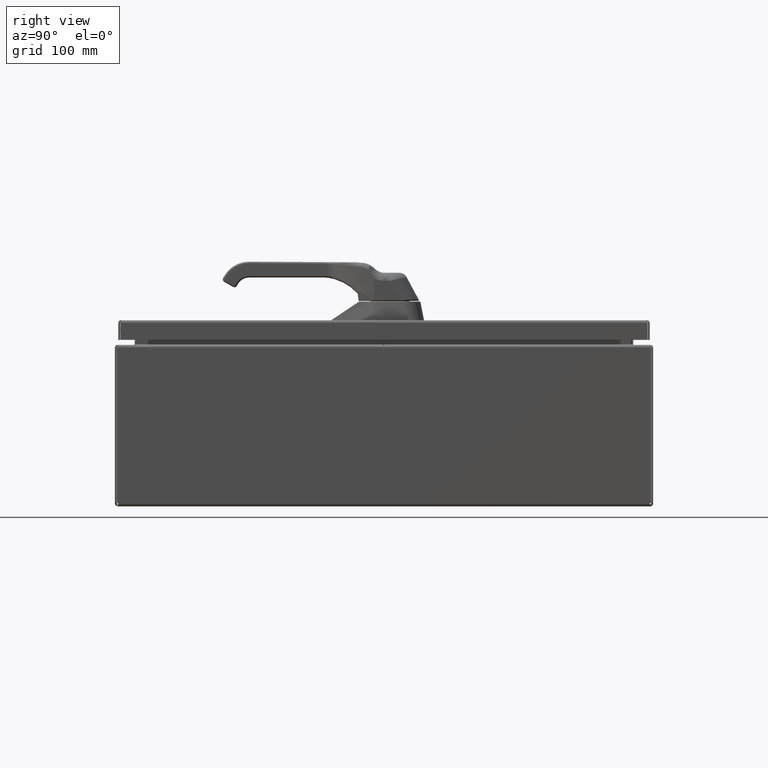
[diagram: clean part render]
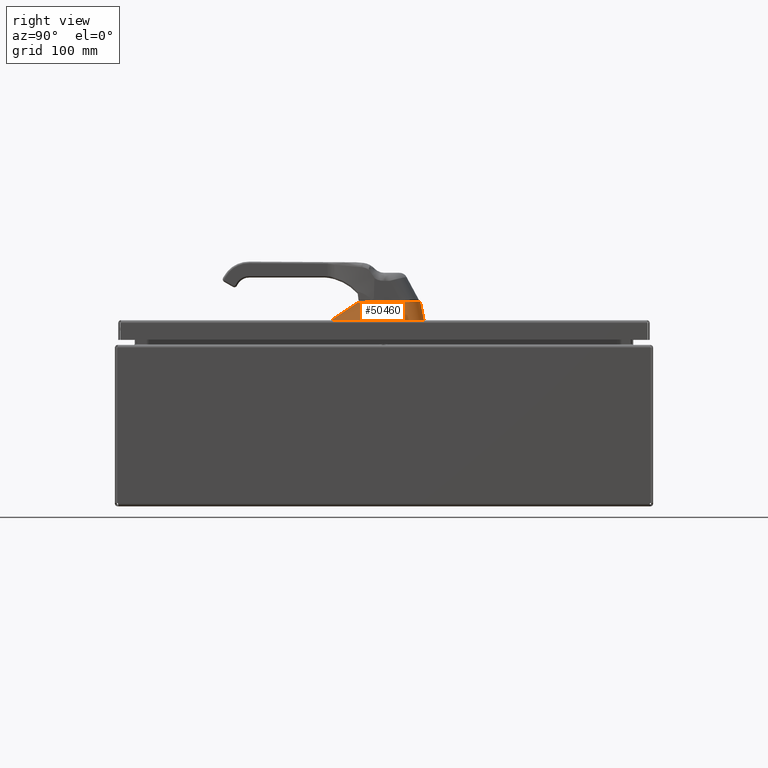
[diagram: same view with one face highlighted and labeled with its STEP entity id]
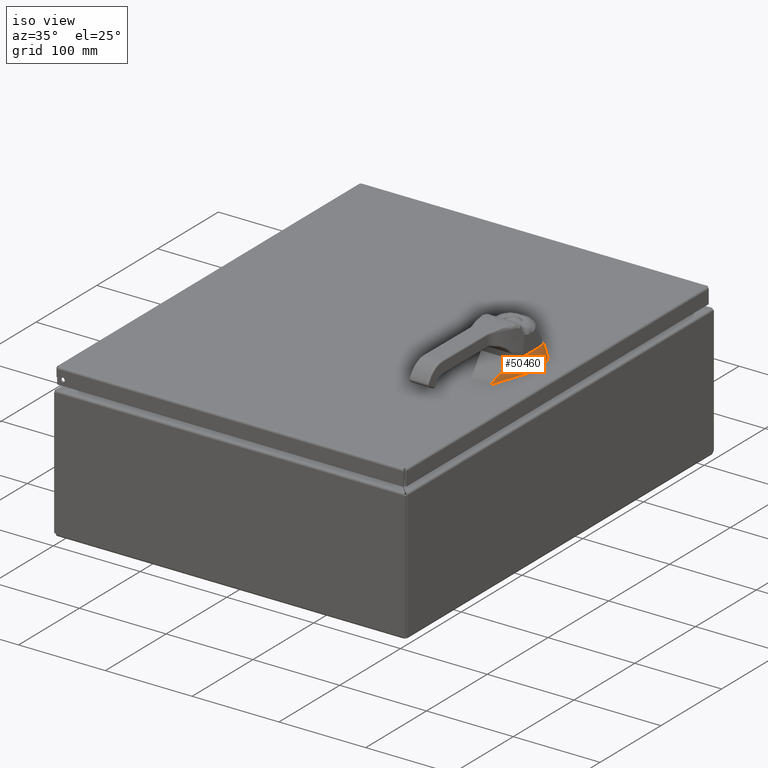
[diagram: same view with one face highlighted and labeled with its STEP entity id]
A machine part, right view. The second image highlights one B-rep face of the part: STEP entity #50460.
A second angle (iso view) of the same face is appended — the face is thin or edge-on in the first view.
In plain terms, the highlighted face is a freeform B-spline surface patch.
Its self-contained STEP definition (entity closure, byte-faithful):
#360 = CARTESIAN_POINT ( 'NONE',  ( 14.72637735990827146, 10.26563857634044830, 6.917496062992112726 ) ) ;
#2075 = CARTESIAN_POINT ( 'NONE',  ( 14.19171500997059887, 8.038510160662474036, 6.917496062992075423 ) ) ;
#2227 = B_SPLINE_SURFACE_WITH_KNOTS ( 'NONE', 3, 1, ( 
 ( #2075, #13485 ),
 ( #59534, #25901 ),
 ( #53601, #36878 ),
 ( #59291, #2543 ),
 ( #14221, #71259 ),
 ( #43103, #19703 ),
 ( #31900, #37121 ),
 ( #2793, #8457 ),
 ( #3528, #47870 ),
 ( #20169, #8701 ),
 ( #66026, #48853 ),
 ( #25657, #20417 ),
 ( #8954, #65052 ),
 ( #65533, #54325 ),
 ( #19455, #25408 ),
 ( #43351, #26142 ),
 ( #65302, #14722 ),
 ( #54561, #42607 ),
 ( #71746, #31407 ),
 ( #37600, #60256 ),
 ( #48378, #19934 ),
 ( #13726, #25173 ),
 ( #31659, #30927 ),
 ( #60017, #65776 ),
 ( #70774, #3035 ),
 ( #31166, #71019 ),
 ( #71512, #36630 ) ),
 .UNSPECIFIED., .F., .F., .F.,
 ( 4, 1, 1, 1, 2, 1, 1, 1, 2, 1, 1, 1, 2, 1, 1, 1, 1, 1, 1, 1, 1, 4 ),
 ( 2, 2 ),
 ( 0.0000000000000000000, 0.07240544140439250653, 0.1448108828087850131, 0.2172163242131775196, 0.2896217656175700261, 0.3051969138773200640, 0.3207720621370700465, 0.3363472103968201399, 0.3519223586565701778, 0.4279957157450060001, 0.5040690728334418225, 0.5801424299218774783, 0.6562157870103133561, 0.6991888136340242976, 0.7421618402577350171, 0.7851348668814458476, 0.8281078935051566781, 0.8710809201288673975, 0.9140539467525783390, 0.9570269733762892805, 0.9785134866881446403, 1.000000000000000000 ),
 ( 0.0000000000000000000, 1.000000000000000000 ),
 .UNSPECIFIED. ) ;
#2338 = B_SPLINE_CURVE_WITH_KNOTS ( 'NONE', 3,
 ( #5379, #38787, #22552, #61919, #15881, #33807, #67707, #50755, #46501, #29303 ),
 .UNSPECIFIED., .F., .F.,
 ( 4, 3, 3, 4 ),
 ( 0.0000000000000000000, 0.001524000243655297075, 0.007620005965614578755, 0.02338885054724057500 ),
 .UNSPECIFIED. ) ;
#2531 = CARTESIAN_POINT ( 'NONE',  ( 14.47650163321287131, 9.128566452414476728, 7.588436902218950841 ) ) ;
#2543 = CARTESIAN_POINT ( 'NONE',  ( 14.52954722570738788, 9.330206910906120754, 7.617496062992098693 ) ) ;
#2793 = CARTESIAN_POINT ( 'NONE',  ( 14.70859377065049323, 9.565773970199487053, 6.917496062992110950 ) ) ;
#3035 = CARTESIAN_POINT ( 'NONE',  ( 13.96075736013992419, 11.34995513358145303, 7.617496062992058725 ) ) ;
#3074 = VERTEX_POINT ( 'NONE', #69841 ) ;
#3199 = CARTESIAN_POINT ( 'NONE',  ( 14.68907273284491311, 9.500345031315463373, 6.917496062992110062 ) ) ;
#3486 = CARTESIAN_POINT ( 'NONE',  ( 14.33204530216146466, 11.42751426132332249, 6.917496062992085193 ) ) ;
#3528 = CARTESIAN_POINT ( 'NONE',  ( 14.71911741499878090, 9.620396043606447734, 6.917496062992110950 ) ) ;
#3978 = CARTESIAN_POINT ( 'NONE',  ( 14.44839954069144206, 11.35818276504949687, 6.917496062992092298 ) ) ;
#4221 = CARTESIAN_POINT ( 'NONE',  ( 14.09542529269964639, 11.33290679591453554, 7.594208377092102502 ) ) ;
#4436 = CARTESIAN_POINT ( 'NONE',  ( 14.05743514116451820, 11.48788984503250887, 6.917496062992065653 ) ) ;
#4453 = CARTESIAN_POINT ( 'NONE',  ( 14.47761758869897974, 11.07885441335435672, 7.594825025479100766 ) ) ;
#4710 = CARTESIAN_POINT ( 'NONE',  ( 14.61884132303648443, 10.66623437690854814, 7.592346945476654341 ) ) ;
#4934 = CARTESIAN_POINT ( 'NONE',  ( 14.59844972823016818, 10.82849895947276231, 7.593599350631599521 ) ) ;
#5170 = CARTESIAN_POINT ( 'NONE',  ( 13.93376745429191921, 11.35529509710129226, 7.593352702874669902 ) ) ;
#5379 = CARTESIAN_POINT ( 'NONE',  ( 14.61883130153532484, 10.64273842948590243, 7.592197776930434294 ) ) ;
#5695 = LINE ( 'NONE', #61416, #59185 ) ;
#6646 = ORIENTED_EDGE ( 'NONE', *, *, #46910, .T. ) ;
#8151 = EDGE_CURVE ( 'NONE', #20083, #23463, #37823, .T. ) ;
#8457 = CARTESIAN_POINT ( 'NONE',  ( 14.59421841137248421, 9.574471255619570798, 7.617496062992103134 ) ) ;
#8701 = CARTESIAN_POINT ( 'NONE',  ( 14.60899617663434391, 9.670203904951101492, 7.617496062992104022 ) ) ;
#8954 = CARTESIAN_POINT ( 'NONE',  ( 14.72637765665425214, 9.995431684442097620, 6.917496062992112726 ) ) ;
#9395 = CARTESIAN_POINT ( 'NONE',  ( 14.72690775374918815, 10.78943047523850751, 6.917496062992112726 ) ) ;
#9606 = CARTESIAN_POINT ( 'NONE',  ( 14.72690775374918815, 10.78943047523850751, 6.917496062992112726 ) ) ;
#9818 = EDGE_CURVE ( 'NONE', #18176, #49765, #19007, .T. ) ;
#9901 = CARTESIAN_POINT ( 'NONE',  ( 14.00361363174469354, 11.35054953628260499, 7.593776100955777153 ) ) ;
#10152 = CARTESIAN_POINT ( 'NONE',  ( 13.91029918760913731, 11.35540568434627495, 7.593182166642768571 ) ) ;
#10852 = ORIENTED_EDGE ( 'NONE', *, *, #63936, .F. ) ;
#10860 = CARTESIAN_POINT ( 'NONE',  ( 14.72637795275383610, 9.725813377427796169, 6.917496062992112726 ) ) ;
#12217 = EDGE_CURVE ( 'NONE', #61488, #23728, #63700, .T. ) ;
#12582 = CARTESIAN_POINT ( 'NONE',  ( 14.72637795275383610, 9.725813377427796169, 6.917496062992112726 ) ) ;
#13485 = CARTESIAN_POINT ( 'NONE',  ( 14.46553157202787965, 9.089891230988527582, 7.617496062992094252 ) ) ;
#13549 = VERTEX_POINT ( 'NONE', #72737 ) ;
#13726 = CARTESIAN_POINT ( 'NONE',  ( 14.44839954069144206, 11.35818276504949687, 6.917496062992092298 ) ) ;
#14221 = CARTESIAN_POINT ( 'NONE',  ( 14.56418851417062399, 9.133285071740926853, 6.917496062992101180 ) ) ;
#14722 = CARTESIAN_POINT ( 'NONE',  ( 14.61513502836011469, 10.68781359829012878, 7.617496062992104022 ) ) ;
#15657 = CARTESIAN_POINT ( 'NONE',  ( 14.68199538628819667, 11.05560267037767197, 6.917496062992109174 ) ) ;
#15673 = CARTESIAN_POINT ( 'NONE',  ( 14.26766815239590969, 11.26357076392344503, 7.594799801970944841 ) ) ;
#15881 = CARTESIAN_POINT ( 'NONE',  ( 14.61798071372504637, 10.50274096838158400, 7.592226002490242820 ) ) ;
#16143 = CARTESIAN_POINT ( 'NONE',  ( 13.93961807795485086, 11.35513748029178593, 7.593392241996787639 ) ) ;
#16379 = CARTESIAN_POINT ( 'NONE',  ( 14.61801178240224708, 10.68968853381386097, 7.592537720275856827 ) ) ;
#17251 = CARTESIAN_POINT ( 'NONE',  ( 14.72637795275383610, 9.725813377427796169, 6.917496062992112726 ) ) ;
#17492 = CARTESIAN_POINT ( 'NONE',  ( 14.72690775107261096, 10.78943004782091108, 6.917496062992112726 ) ) ;
#17800 = CARTESIAN_POINT ( 'NONE',  ( 14.71911741499878090, 9.620396043606447734, 6.917496062992110950 ) ) ;
#18176 = VERTEX_POINT ( 'NONE', #42337 ) ;
#18948 = CARTESIAN_POINT ( 'NONE',  ( 14.49930072842515649, 9.211510675391174630, 7.589199734275259956 ) ) ;
#19007 = LINE ( 'NONE', #71261, #33294 ) ;
#19455 = CARTESIAN_POINT ( 'NONE',  ( 14.72637706744151664, 10.53194895286889299, 6.917496062992112726 ) ) ;
#19703 = CARTESIAN_POINT ( 'NONE',  ( 14.57515430285580571, 9.501416531116321451, 7.617496062992101358 ) ) ;
#19934 = CARTESIAN_POINT ( 'NONE',  ( 14.38314765349461766, 11.17816336522798970, 7.617496062992088035 ) ) ;
#20083 = VERTEX_POINT ( 'NONE', #9606 ) ;
#20169 = CARTESIAN_POINT ( 'NONE',  ( 14.72494167522307507, 9.672262740927447311, 6.917496062992112726 ) ) ;
#20417 = CARTESIAN_POINT ( 'NONE',  ( 14.61070236908331843, 9.798063034454719045, 7.617496062992104022 ) ) ;
#20933 = ORIENTED_EDGE ( 'NONE', *, *, #12217, .T. ) ;
#21826 = CARTESIAN_POINT ( 'NONE',  ( 14.39864327692350976, 11.16495846854291862, 7.594947104878785993 ) ) ;
#21953 = CARTESIAN_POINT ( 'NONE',  ( 14.59836204020883166, 9.572430701216525506, 7.592343134838558605 ) ) ;
#22552 = CARTESIAN_POINT ( 'NONE',  ( 14.61856616779023810, 10.60273929845422636, 7.592205004363788312 ) ) ;
#22693 = CARTESIAN_POINT ( 'NONE',  ( 14.72637706744151664, 10.53194895286889299, 6.917496062992112726 ) ) ;
#23463 = VERTEX_POINT ( 'NONE', #63800 ) ;
#23728 = VERTEX_POINT ( 'NONE', #37105 ) ;
#23750 = CARTESIAN_POINT ( 'NONE',  ( 14.68907273284491311, 9.500345031315463373, 6.917496062992110062 ) ) ;
#24267 = CARTESIAN_POINT ( 'NONE',  ( 14.72637797286667727, 9.707499301184705942, 6.917496062992112726 ) ) ;
#24660 = CARTESIAN_POINT ( 'NONE',  ( 14.54500024267428060, 9.377369961789538522, 7.590774721545543002 ) ) ;
#25153 = CARTESIAN_POINT ( 'NONE',  ( 14.56790703475230409, 9.460282832082137716, 7.591692891181177849 ) ) ;
#25173 = CARTESIAN_POINT ( 'NONE',  ( 14.26297942627913251, 11.26340030839992856, 7.617496062992079153 ) ) ;
#25408 = CARTESIAN_POINT ( 'NONE',  ( 14.61352842560536835, 10.40651449650506599, 7.617496062992104022 ) ) ;
#25511 = CARTESIAN_POINT ( 'NONE',  ( 14.32862329099924104, 8.564200695825499920, 7.267496062992083949 ) ) ;
#25657 = CARTESIAN_POINT ( 'NONE',  ( 14.72637785451711956, 9.815264421279632501, 6.917496062992112726 ) ) ;
#25901 = CARTESIAN_POINT ( 'NONE',  ( 14.48109229487121752, 9.148306407201948431, 7.617496062992096029 ) ) ;
#26142 = CARTESIAN_POINT ( 'NONE',  ( 14.61425569374272548, 10.56309571065486352, 7.617496062992104022 ) ) ;
#26615 = CARTESIAN_POINT ( 'NONE',  ( 14.62363976176578362, 11.17008353174790969, 6.917496062992104733 ) ) ;
#27612 = CARTESIAN_POINT ( 'NONE',  ( 14.16224442345631118, 11.31175146303931456, 7.594469782991245310 ) ) ;
#27726 = CARTESIAN_POINT ( 'NONE',  ( 14.72637785451711956, 9.815264421279632501, 6.917496062992112726 ) ) ;
#27857 = CARTESIAN_POINT ( 'NONE',  ( 14.51590431030601458, 11.02073362413575808, 7.594626174959842047 ) ) ;
#28471 = CARTESIAN_POINT ( 'NONE',  ( 14.60424845141657535, 9.601924536378732000, 7.592329596740807318 ) ) ;
#29303 = CARTESIAN_POINT ( 'NONE',  ( 14.61450775297425153, 9.721928126943016224, 7.592401040037844773 ) ) ;
#30927 = CARTESIAN_POINT ( 'NONE',  ( 14.13824475193093200, 11.31828193118669645, 7.617496062992071160 ) ) ;
#31166 = CARTESIAN_POINT ( 'NONE',  ( 14.05743514116451820, 11.48788984503250887, 6.917496062992065653 ) ) ;
#31407 = CARTESIAN_POINT ( 'NONE',  ( 14.56403456282048481, 10.92696967938204899, 7.617496062992099581 ) ) ;
#31659 = CARTESIAN_POINT ( 'NONE',  ( 14.33204530216146466, 11.42751426132332249, 6.917496062992085193 ) ) ;
#31900 = CARTESIAN_POINT ( 'NONE',  ( 14.69750078435259688, 9.525116778126568207, 6.917496062992110062 ) ) ;
#32356 = CARTESIAN_POINT ( 'NONE',  ( 14.02751391993420427, 11.48732905831026052, 6.917496062992062988 ) ) ;
#32851 = CARTESIAN_POINT ( 'NONE',  ( 14.44831978030993547, 11.11492301153268336, 7.594905573864562776 ) ) ;
#33092 = CARTESIAN_POINT ( 'NONE',  ( 14.55938925212414325, 10.93786408796391285, 7.594248907803144100 ) ) ;
#33294 = VECTOR ( 'NONE', #60770, 39.37007874015748143 ) ;
#33335 = CARTESIAN_POINT ( 'NONE',  ( 14.61883130153532484, 10.64273842948590243, 7.592197776930434294 ) ) ;
#33454 = CARTESIAN_POINT ( 'NONE',  ( 14.72690775374918815, 10.78943047523850751, 6.917496062992112726 ) ) ;
#33581 = CARTESIAN_POINT ( 'NONE',  ( 14.52773024774912614, 11.00069536896663891, 7.594546864248123974 ) ) ;
#33714 = CARTESIAN_POINT ( 'NONE',  ( 14.59045101224151608, 9.543299039084223168, 7.592174226782821833 ) ) ;
#33807 = CARTESIAN_POINT ( 'NONE',  ( 14.61765153313870869, 10.42274153799408509, 7.592245435430095668 ) ) ;
#33832 = CARTESIAN_POINT ( 'NONE',  ( 13.95714203378590845, 11.35444409195354432, 7.593506436895148148 ) ) ;
#35883 = CARTESIAN_POINT ( 'NONE',  ( 14.59045101224151608, 9.543299039084223168, 7.592174226782821833 ) ) ;
#36583 = CARTESIAN_POINT ( 'NONE',  ( 13.91029918760913731, 11.35540568434627495, 7.593182166642768571 ) ) ;
#36630 = CARTESIAN_POINT ( 'NONE',  ( 13.90608133136351832, 11.35065855217457909, 7.617496062992055172 ) ) ;
#36878 = CARTESIAN_POINT ( 'NONE',  ( 14.50150085110972498, 9.224920419348851652, 7.617496062992096917 ) ) ;
#37105 = CARTESIAN_POINT ( 'NONE',  ( 14.45398204553210597, 9.045544192819425788, 7.587970206388318317 ) ) ;
#37121 = CARTESIAN_POINT ( 'NONE',  ( 14.58910387681407705, 9.553754448835270807, 7.617496062992102246 ) ) ;
#37386 = FACE_OUTER_BOUND ( 'NONE', #49611, .T. ) ;
#37600 = CARTESIAN_POINT ( 'NONE',  ( 14.62363976176578362, 11.17008353174790969, 6.917496062992104733 ) ) ;
#37823 = B_SPLINE_CURVE_WITH_KNOTS ( 'NONE', 3,
 ( #9395, #65993, #60977, #15657, #26615, #71712, #3978, #3486, #60735, #66480, #4436, #32356 ),
 .UNSPECIFIED., .F., .F.,
 ( 4, 1, 1, 1, 1, 1, 1, 1, 1, 4 ),
 ( 0.0000000000000000000, 0.1249990235183277426, 0.2499991630157092082, 0.3749993025130909929, 0.4999994420104728055, 0.6249995815078542849, 0.7499997210052363750, 0.8749998605026185761, 0.9374999302513092880, 1.000000000000000000 ),
 .UNSPECIFIED. ) ;
#38326 = CARTESIAN_POINT ( 'NONE',  ( 13.96878747268949894, 11.35368795829967681, 7.593576738639864487 ) ) ;
#38787 = CARTESIAN_POINT ( 'NONE',  ( 14.61869259373831476, 10.62273890756997829, 7.592201121250737650 ) ) ;
#38819 = CARTESIAN_POINT ( 'NONE',  ( 14.61121823032397060, 10.75980834912273032, 7.593089153017182902 ) ) ;
#38874 = EDGE_CURVE ( 'NONE', #49765, #46856, #41929, .T. ) ;
#40149 = CARTESIAN_POINT ( 'NONE',  ( 14.72690774839567496, 10.78942962040316189, 6.917496062992112726 ) ) ;
#40635 = EDGE_CURVE ( 'NONE', #48294, #13549, #70569, .T. ) ;
#41625 = CARTESIAN_POINT ( 'NONE',  ( 14.45398204553210597, 9.045544192819425788, 7.587970206388318317 ) ) ;
#41768 = ORIENTED_EDGE ( 'NONE', *, *, #57112, .T. ) ;
#41929 = B_SPLINE_CURVE_WITH_KNOTS ( 'NONE', 3,
 ( #23750, #58651, #51961, #17800, #69385, #24267, #12582 ),
 .UNSPECIFIED., .F., .F.,
 ( 4, 1, 1, 1, 4 ),
 ( 0.0000000000000000000, 0.2499999997871784618, 0.4999999999938122830, 0.7500000002004478805, 1.000000000000000000 ),
 .UNSPECIFIED. ) ;
#42337 = CARTESIAN_POINT ( 'NONE',  ( 14.19171500997059887, 8.038510160662474036, 6.917496062992075423 ) ) ;
#42607 = CARTESIAN_POINT ( 'NONE',  ( 14.60747074875984453, 10.78189008352792477, 7.617496062992103134 ) ) ;
#43103 = CARTESIAN_POINT ( 'NONE',  ( 14.64989257333659722, 9.385186623648637649, 6.917496062992106509 ) ) ;
#43351 = CARTESIAN_POINT ( 'NONE',  ( 14.72637687774699344, 10.70467839352589934, 6.917496062992112726 ) ) ;
#43700 = DIRECTION ( 'NONE',  ( 0.2118616626373836243, 0.8134911195698603104, 0.5416150240581391051 ) ) ;
#44076 = CARTESIAN_POINT ( 'NONE',  ( 13.92204743490144736, 11.35546200449973497, 7.593270157471190274 ) ) ;
#44322 = CARTESIAN_POINT ( 'NONE',  ( 14.61435110429299655, 10.73649803732373620, 7.592909790348676857 ) ) ;
#44452 = CARTESIAN_POINT ( 'NONE',  ( 14.61223708402097721, 9.661588412750749200, 7.592383884944471362 ) ) ;
#44570 = CARTESIAN_POINT ( 'NONE',  ( 14.61891281048836255, 10.65449076156659380, 7.592195811705318320 ) ) ;
#44936 = CARTESIAN_POINT ( 'NONE',  ( 14.61450775297425153, 9.721928126943016224, 7.592401040037844773 ) ) ;
#45454 = ORIENTED_EDGE ( 'NONE', *, *, #40635, .T. ) ;
#46501 = CARTESIAN_POINT ( 'NONE',  ( 14.61547705917092976, 9.928866002103452715, 7.592412221894309532 ) ) ;
#46842 = B_SPLINE_CURVE_WITH_KNOTS ( 'NONE', 3,
 ( #44936, #61833, #44452, #28471, #21953, #33714 ),
 .UNSPECIFIED., .F., .F.,
 ( 4, 2, 4 ),
 ( 0.0000000000000000000, 0.002297443459031754155, 0.004594886918063508310 ),
 .UNSPECIFIED. ) ;
#46856 = VERTEX_POINT ( 'NONE', #10860 ) ;
#46910 = EDGE_CURVE ( 'NONE', #13549, #3074, #2338, .T. ) ;
#47870 = CARTESIAN_POINT ( 'NONE',  ( 14.60225201401437189, 9.615207328848734747, 7.617496062992103134 ) ) ;
#48294 = VERTEX_POINT ( 'NONE', #36583 ) ;
#48378 = CARTESIAN_POINT ( 'NONE',  ( 14.54552845905718961, 11.27150567907498235, 6.917496062992099404 ) ) ;
#48853 = CARTESIAN_POINT ( 'NONE',  ( 14.61027645103106565, 9.706365357432600760, 7.617496062992104022 ) ) ;
#49243 = VECTOR ( 'NONE', #43700, 39.37007874015748143 ) ;
#49611 = EDGE_LOOP ( 'NONE', ( #65532, #20933, #10852, #64654, #53019, #41768, #53443, #60395, #45454, #6646 ) ) ;
#49765 = VERTEX_POINT ( 'NONE', #3199 ) ;
#49817 = CARTESIAN_POINT ( 'NONE',  ( 14.22664136063210805, 11.28532822835393823, 7.594686778486102519 ) ) ;
#50303 = CARTESIAN_POINT ( 'NONE',  ( 14.07253480449542238, 11.33849859610168309, 7.594108863950463473 ) ) ;
#50460 = ADVANCED_FACE ( 'NONE', ( #37386 ), #2227, .T. ) ;
#50755 = CARTESIAN_POINT ( 'NONE',  ( 14.61636355789644881, 10.13580424697070548, 7.592307844675899808 ) ) ;
#51961 = CARTESIAN_POINT ( 'NONE',  ( 14.70859377065049323, 9.565773970199487053, 6.917496062992110950 ) ) ;
#53019 = ORIENTED_EDGE ( 'NONE', *, *, #38874, .T. ) ;
#53153 = EDGE_CURVE ( 'NONE', #3074, #61488, #46842, .T. ) ;
#53443 = ORIENTED_EDGE ( 'NONE', *, *, #8151, .T. ) ;
#53601 = CARTESIAN_POINT ( 'NONE',  ( 14.29524565881401976, 8.342807662641526179, 6.917496062992082528 ) ) ;
#54032 = CARTESIAN_POINT ( 'NONE',  ( 14.59045101224151608, 9.543299039084223168, 7.592174226782821833 ) ) ;
#54325 = CARTESIAN_POINT ( 'NONE',  ( 14.61246137169538706, 10.17677722601948886, 7.617496062992104022 ) ) ;
#54561 = CARTESIAN_POINT ( 'NONE',  ( 14.71888629102475221, 10.92917429182232958, 6.917496062992110950 ) ) ;
#55533 = CARTESIAN_POINT ( 'NONE',  ( 14.32624903216665402, 11.22449843292253568, 7.594901459886200357 ) ) ;
#57112 = EDGE_CURVE ( 'NONE', #46856, #20083, #65991, .T. ) ;
#58651 = CARTESIAN_POINT ( 'NONE',  ( 14.69750078435259688, 9.525116778126568207, 6.917496062992110062 ) ) ;
#59185 = VECTOR ( 'NONE', #67176, 39.37007874015748143 ) ;
#59291 = CARTESIAN_POINT ( 'NONE',  ( 14.42357462982297100, 8.719992445561457473, 6.917496062992091410 ) ) ;
#59534 = CARTESIAN_POINT ( 'NONE',  ( 14.22419731935692688, 8.133982233089254166, 6.917496062992077199 ) ) ;
#60017 = CARTESIAN_POINT ( 'NONE',  ( 14.21789414525600037, 11.46751997768217279, 6.917496062992076311 ) ) ;
#60256 = CARTESIAN_POINT ( 'NONE',  ( 14.48727345481090723, 11.06340116714763688, 7.617496062992096917 ) ) ;
#60395 = ORIENTED_EDGE ( 'NONE', *, *, #73230, .T. ) ;
#60735 = CARTESIAN_POINT ( 'NONE',  ( 14.21789414525600037, 11.46751997768217279, 6.917496062992076311 ) ) ;
#60770 = DIRECTION ( 'NONE',  ( 0.3220965390857925548, 0.9467068287009208216, 2.193791796251459362E-14 ) ) ;
#60977 = CARTESIAN_POINT ( 'NONE',  ( 14.71888618123960413, 10.92917466806570381, 6.917496062992112726 ) ) ;
#61232 = CARTESIAN_POINT ( 'NONE',  ( 14.34512954569782117, 11.21049689267533012, 7.594923859830316815 ) ) ;
#61416 = CARTESIAN_POINT ( 'NONE',  ( 13.96679762564886218, 11.41899380524242069, 7.267496062992059080 ) ) ;
#61488 = VERTEX_POINT ( 'NONE', #54032 ) ;
#61718 = CARTESIAN_POINT ( 'NONE',  ( 14.54948021406007541, 10.95926874860388800, 7.594358971731818286 ) ) ;
#61833 = CARTESIAN_POINT ( 'NONE',  ( 14.61436640016371236, 9.691750614036392264, 7.592399409400546695 ) ) ;
#61919 = CARTESIAN_POINT ( 'NONE',  ( 14.61844907701242668, 10.58273963845671695, 7.592209203987815513 ) ) ;
#62806 = CARTESIAN_POINT ( 'NONE',  ( 14.72637765665425214, 9.995431684442097620, 6.917496062992112726 ) ) ;
#63700 = B_SPLINE_CURVE_WITH_KNOTS ( 'NONE', 3,
 ( #35883, #25153, #24660, #18948, #2531, #41625 ),
 .UNSPECIFIED., .F., .F.,
 ( 4, 2, 4 ),
 ( 0.0000000000000000000, 0.006554991882694074547, 0.01310998376538814909 ),
 .UNSPECIFIED. ) ;
#63800 = CARTESIAN_POINT ( 'NONE',  ( 14.02751391993420427, 11.48732905831026052, 6.917496062992062988 ) ) ;
#63936 = EDGE_CURVE ( 'NONE', #18176, #23728, #65321, .T. ) ;
#64654 = ORIENTED_EDGE ( 'NONE', *, *, #9818, .T. ) ;
#65052 = CARTESIAN_POINT ( 'NONE',  ( 14.61140582848136305, 9.949518214453103582, 7.617496062992104022 ) ) ;
#65302 = CARTESIAN_POINT ( 'NONE',  ( 14.72720762736343403, 10.83730401409134103, 6.917496062992112726 ) ) ;
#65321 = LINE ( 'NONE', #25511, #49243 ) ;
#65532 = ORIENTED_EDGE ( 'NONE', *, *, #53153, .T. ) ;
#65533 = CARTESIAN_POINT ( 'NONE',  ( 14.72637735990827146, 10.26563857634044830, 6.917496062992112726 ) ) ;
#65776 = CARTESIAN_POINT ( 'NONE',  ( 14.03733863155152584, 11.34181710150717848, 7.617496062992064942 ) ) ;
#65991 = B_SPLINE_CURVE_WITH_KNOTS ( 'NONE', 3,
 ( #17251, #27726, #62806, #360, #22693, #67598, #40149, #17492, #33454 ),
 .UNSPECIFIED., .F., .F.,
 ( 4, 1, 1, 1, 2, 4 ),
 ( 0.0000000000000000000, 0.2499996848609361833, 0.4999993696385269804, 0.7499990544161172501, 0.9999987391937081860, 1.000000000000000000 ),
 .UNSPECIFIED. ) ;
#65993 = CARTESIAN_POINT ( 'NONE',  ( 14.72720755307169860, 10.83730483429271807, 6.917496062992112726 ) ) ;
#66026 = CARTESIAN_POINT ( 'NONE',  ( 14.72637797286667727, 9.707499301184705942, 6.917496062992112726 ) ) ;
#66480 = CARTESIAN_POINT ( 'NONE',  ( 14.11419319355771762, 11.48510258600111911, 6.917496062992070094 ) ) ;
#66990 = CARTESIAN_POINT ( 'NONE',  ( 13.91612282392127042, 11.35547067903198126, 7.593226730022280435 ) ) ;
#67176 = DIRECTION ( 'NONE',  ( -0.1678448986635359685, -0.1889068455399349755, 0.9675444660070040559 ) ) ;
#67484 = CARTESIAN_POINT ( 'NONE',  ( 14.02668458114256644, 11.34730022644644265, 7.593892366260759808 ) ) ;
#67598 = CARTESIAN_POINT ( 'NONE',  ( 14.72637687774699344, 10.70467839352589934, 6.917496062992112726 ) ) ;
#67707 = CARTESIAN_POINT ( 'NONE',  ( 14.61729244062135713, 10.34274230293552499, 7.592262835371061946 ) ) ;
#67729 = CARTESIAN_POINT ( 'NONE',  ( 14.14030067266021540, 11.31951940247337873, 7.594388713367850485 ) ) ;
#69385 = CARTESIAN_POINT ( 'NONE',  ( 14.72494167522307507, 9.672262740927447311, 6.917496062992112726 ) ) ;
#69841 = CARTESIAN_POINT ( 'NONE',  ( 14.61450775297425153, 9.721928126943016224, 7.592401040037844773 ) ) ;
#70569 = B_SPLINE_CURVE_WITH_KNOTS ( 'NONE', 3,
 ( #10152, #66990, #44076, #5170, #16143, #33832, #38326, #9901, #67484, #50303, #4221, #67729, #27612, #49817, #15673, #55533, #61232, #72724, #21826, #32851, #4453, #27857, #33581, #61718, #33092, #73452, #4934, #38819, #44322, #72968, #16379, #4710, #44570, #33335 ),
 .UNSPECIFIED., .F., .F.,
 ( 4, 2, 2, 2, 2, 2, 2, 2, 2, 2, 2, 2, 2, 2, 2, 2, 4 ),
 ( -6.000000000089950392E-08, 0.0004437417141676248239, 0.0008875434283352504842, 0.001775146856670501046, 0.003550353713341002169, 0.005325560570011503292, 0.007100767426682003981, 0.01065118114002294378, 0.01242638799669329962, 0.01420159485336365546, 0.01775200856670437061, 0.01952721542337472471, 0.02130242228004507535, 0.02485283599338584948, 0.02662804285005613766, 0.02751564627839129043, 0.02840324970672643626 ),
 .UNSPECIFIED. ) ;
#70774 = CARTESIAN_POINT ( 'NONE',  ( 14.11419319355771762, 11.48510258600111911, 6.917496062992070094 ) ) ;
#71019 = CARTESIAN_POINT ( 'NONE',  ( 13.92401933786243440, 11.35087867587971466, 7.617496062992056061 ) ) ;
#71259 = CARTESIAN_POINT ( 'NONE',  ( 14.55582691635818549, 9.428861245647254918, 7.617496062992099581 ) ) ;
#71261 = CARTESIAN_POINT ( 'NONE',  ( 14.68907273284491311, 9.500345031315463373, 6.917496062992109174 ) ) ;
#71512 = CARTESIAN_POINT ( 'NONE',  ( 14.02751391993420427, 11.48732905831026052, 6.917496062992062988 ) ) ;
#71712 = CARTESIAN_POINT ( 'NONE',  ( 14.54552845905718961, 11.27150567907498235, 6.917496062992099404 ) ) ;
#71746 = CARTESIAN_POINT ( 'NONE',  ( 14.68199538628819667, 11.05560267037767197, 6.917496062992109174 ) ) ;
#72724 = CARTESIAN_POINT ( 'NONE',  ( 14.38129925863034053, 11.18075443716583450, 7.594946484985112711 ) ) ;
#72737 = CARTESIAN_POINT ( 'NONE',  ( 14.61883130153532484, 10.64273842948590243, 7.592197776930434294 ) ) ;
#72968 = CARTESIAN_POINT ( 'NONE',  ( 14.61731273317779944, 10.70140157830049432, 7.592631804762114633 ) ) ;
#73230 = EDGE_CURVE ( 'NONE', #23463, #48294, #5695, .T. ) ;
#73452 = CARTESIAN_POINT ( 'NONE',  ( 14.58549385552714206, 10.87301331890600231, 7.593884745384458235 ) ) ;